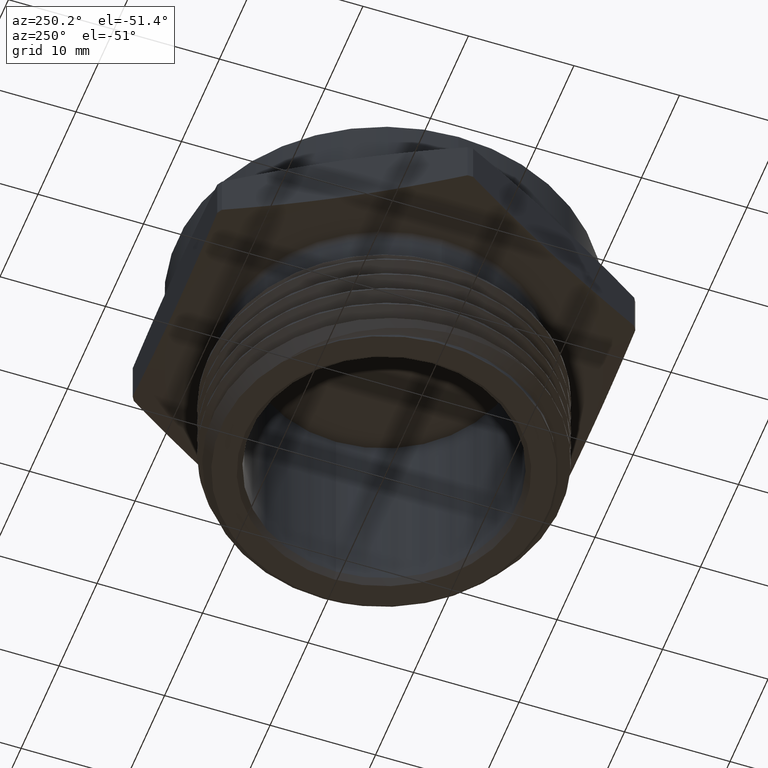
[diagram: clean part render]
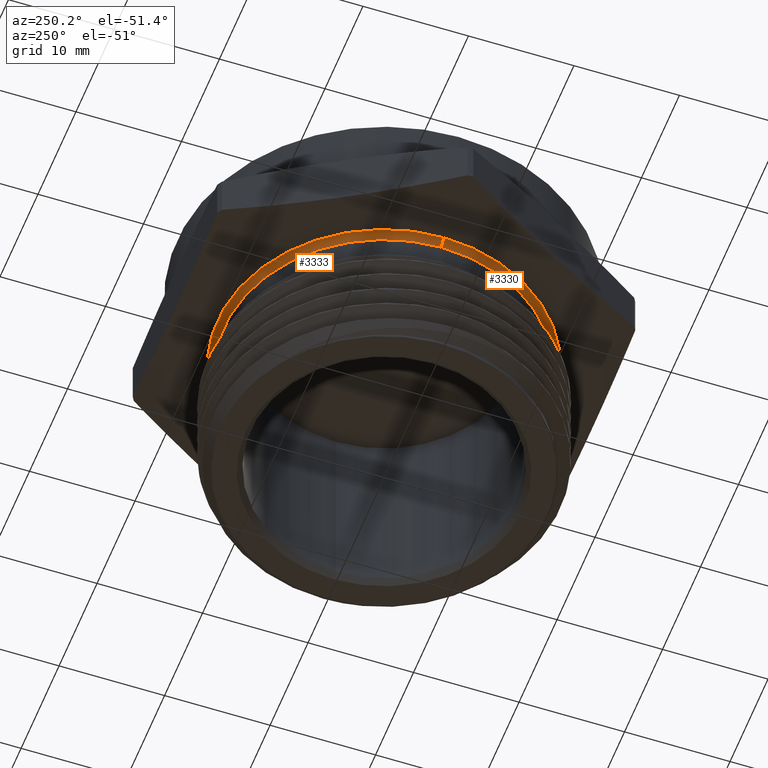
[diagram: same view with one multi-face feature highlighted, each face labeled with its STEP entity id]
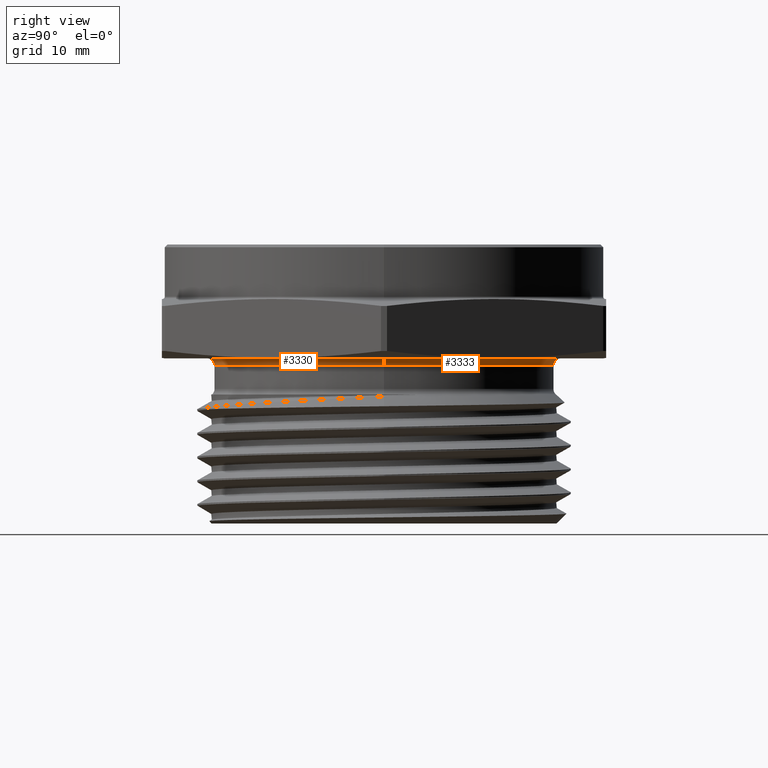
[diagram: same view with one multi-face feature highlighted, each face labeled with its STEP entity id]
A machine part, auxiliary view. The highlighted faces form ONE feature: a constant-radius fillet chain: 2 tangent blend faces with common blend radius 0.635 mm. The faces share edges in the B-rep.
A second angle (right view) of the same feature is appended — it is thin or edge-on in the first view.
Their STEP definitions:
[1] entity #3330 (Torus):
#872 = CARTESIAN_POINT ( 'NONE',  ( -0.6224999999999999400, 7.623426324692272200E-017, -0.02500000000000002200 ) ) ;
#873 = DIRECTION ( 'NONE',  ( 1.224646799147353200E-016, 1.000000000000000000, 0.0000000000000000000 ) ) ;
#874 = DIRECTION ( 'NONE',  ( -1.000000000000000000, 1.224646799147351700E-016, 0.0000000000000000000 ) ) ;
#883 = CARTESIAN_POINT ( 'NONE',  ( 0.6224999999999999400, 0.0000000000000000000, -0.02500000000000002200 ) ) ;
#884 = DIRECTION ( 'NONE',  ( 0.0000000000000000000, -1.000000000000000000, 0.0000000000000000000 ) ) ;
#885 = DIRECTION ( 'NONE',  ( 0.0000000000000000000, 0.0000000000000000000, -1.000000000000000000 ) ) ;
#886 = CARTESIAN_POINT ( 'NONE',  ( 0.0000000000000000000, 0.0000000000000000000, -0.02500000000000002900 ) ) ;
#887 = DIRECTION ( 'NONE',  ( -0.0000000000000000000, -0.0000000000000000000, 1.000000000000000000 ) ) ;
#888 = DIRECTION ( 'NONE',  ( 1.000000000000000000, 0.0000000000000000000, 0.0000000000000000000 ) ) ;
#931 = EDGE_CURVE ( 'NONE', #1632, #1582, #1210, .T. ) ;
#1033 = ORIENTED_EDGE ( 'NONE', *, *, #931, .F. ) ;
#1034 = ORIENTED_EDGE ( 'NONE', *, *, #1436, .T. ) ;
#1035 = ORIENTED_EDGE ( 'NONE', *, *, #1441, .T. ) ;
#1036 = ORIENTED_EDGE ( 'NONE', *, *, #1439, .F. ) ;
#1210 = CIRCLE ( 'NONE', #1313, 0.6224999999999999400 ) ;
#1313 = AXIS2_PLACEMENT_3D ( 'NONE', #1690, #1691, #1692 ) ;
#1340 = AXIS2_PLACEMENT_3D ( 'NONE', #872, #873, #874 ) ;
#1343 = AXIS2_PLACEMENT_3D ( 'NONE', #883, #884, #885 ) ;
#1344 = AXIS2_PLACEMENT_3D ( 'NONE', #886, #887, #888 ) ;
#1383 = AXIS2_PLACEMENT_3D ( 'NONE', #2332, #2331, #2334 ) ;
#1436 = EDGE_CURVE ( 'NONE', #1632, #1625, #2464, .T. ) ;
#1439 = EDGE_CURVE ( 'NONE', #1582, #1594, #2466, .T. ) ;
#1441 = EDGE_CURVE ( 'NONE', #1625, #1594, #2469, .T. ) ;
#1454 = EDGE_LOOP ( 'NONE', ( #1033, #1034, #1035, #1036 ) ) ;
#1582 = VERTEX_POINT ( 'NONE', #2203 ) ;
#1594 = VERTEX_POINT ( 'NONE', #2213 ) ;
#1625 = VERTEX_POINT ( 'NONE', #2229 ) ;
#1632 = VERTEX_POINT ( 'NONE', #2248 ) ;
#1690 = CARTESIAN_POINT ( 'NONE',  ( 0.0000000000000000000, 0.0000000000000000000, -2.134256245050205600E-017 ) ) ;
#1691 = DIRECTION ( 'NONE',  ( -0.0000000000000000000, -0.0000000000000000000, 1.000000000000000000 ) ) ;
#1692 = DIRECTION ( 'NONE',  ( 1.000000000000000000, 0.0000000000000000000, 0.0000000000000000000 ) ) ;
#2203 = CARTESIAN_POINT ( 'NONE',  ( 0.6224999999999999400, 0.0000000000000000000, -3.628235616585349700E-017 ) ) ;
#2213 = CARTESIAN_POINT ( 'NONE',  ( 0.5975000000000000300, 0.0000000000000000000, -0.02500000000000002900 ) ) ;
#2229 = CARTESIAN_POINT ( 'NONE',  ( -0.5975000000000000300, 7.317264624905434600E-017, -0.02500000000000002900 ) ) ;
#2248 = CARTESIAN_POINT ( 'NONE',  ( -0.6224999999999999400, 7.623426324692271000E-017, -3.628235616585349700E-017 ) ) ;
#2331 = DIRECTION ( 'NONE',  ( -0.0000000000000000000, -0.0000000000000000000, 1.000000000000000000 ) ) ;
#2332 = CARTESIAN_POINT ( 'NONE',  ( 0.0000000000000000000, 0.0000000000000000000, -0.02500000000000002200 ) ) ;
#2334 = DIRECTION ( 'NONE',  ( 1.000000000000000000, 0.0000000000000000000, 0.0000000000000000000 ) ) ;
#2464 = CIRCLE ( 'NONE', #1340, 0.02500000000000000500 ) ;
#2466 = CIRCLE ( 'NONE', #1343, 0.02499999999999997400 ) ;
#2469 = CIRCLE ( 'NONE', #1344, 0.5975000000000000300 ) ;
#2562 = TOROIDAL_SURFACE ( 'NONE', #1383, 0.6224999999999999400, 0.02499999999999997400 ) ;
#2563 = FACE_OUTER_BOUND ( 'NONE', #1454, .T. ) ;
#3330 = ADVANCED_FACE ( 'NONE', ( #2563 ), #2562, .F. ) ;
[2] entity #3333 (Torus):
#753 = CARTESIAN_POINT ( 'NONE',  ( 0.0000000000000000000, 0.0000000000000000000, -2.134256245050205600E-017 ) ) ;
#754 = DIRECTION ( 'NONE',  ( -0.0000000000000000000, -0.0000000000000000000, 1.000000000000000000 ) ) ;
#755 = DIRECTION ( 'NONE',  ( 1.000000000000000000, 0.0000000000000000000, 0.0000000000000000000 ) ) ;
#872 = CARTESIAN_POINT ( 'NONE',  ( -0.6224999999999999400, 7.623426324692272200E-017, -0.02500000000000002200 ) ) ;
#873 = DIRECTION ( 'NONE',  ( 1.224646799147353200E-016, 1.000000000000000000, 0.0000000000000000000 ) ) ;
#874 = DIRECTION ( 'NONE',  ( -1.000000000000000000, 1.224646799147351700E-016, 0.0000000000000000000 ) ) ;
#879 = CARTESIAN_POINT ( 'NONE',  ( 0.0000000000000000000, 0.0000000000000000000, -0.02500000000000002900 ) ) ;
#880 = DIRECTION ( 'NONE',  ( -0.0000000000000000000, -0.0000000000000000000, 1.000000000000000000 ) ) ;
#881 = DIRECTION ( 'NONE',  ( 1.000000000000000000, 0.0000000000000000000, 0.0000000000000000000 ) ) ;
#883 = CARTESIAN_POINT ( 'NONE',  ( 0.6224999999999999400, 0.0000000000000000000, -0.02500000000000002200 ) ) ;
#884 = DIRECTION ( 'NONE',  ( 0.0000000000000000000, -1.000000000000000000, 0.0000000000000000000 ) ) ;
#885 = DIRECTION ( 'NONE',  ( 0.0000000000000000000, 0.0000000000000000000, -1.000000000000000000 ) ) ;
#947 = EDGE_LOOP ( 'NONE', ( #1131, #1132, #1133, #1134 ) ) ;
#1131 = ORIENTED_EDGE ( 'NONE', *, *, #1436, .F. ) ;
#1132 = ORIENTED_EDGE ( 'NONE', *, *, #1295, .F. ) ;
#1133 = ORIENTED_EDGE ( 'NONE', *, *, #1439, .T. ) ;
#1134 = ORIENTED_EDGE ( 'NONE', *, *, #1438, .T. ) ;
#1295 = EDGE_CURVE ( 'NONE', #1582, #1632, #2453, .T. ) ;
#1332 = AXIS2_PLACEMENT_3D ( 'NONE', #753, #754, #755 ) ;
#1340 = AXIS2_PLACEMENT_3D ( 'NONE', #872, #873, #874 ) ;
#1342 = AXIS2_PLACEMENT_3D ( 'NONE', #879, #880, #881 ) ;
#1343 = AXIS2_PLACEMENT_3D ( 'NONE', #883, #884, #885 ) ;
#1387 = AXIS2_PLACEMENT_3D ( 'NONE', #2342, #2340, #2344 ) ;
#1436 = EDGE_CURVE ( 'NONE', #1632, #1625, #2464, .T. ) ;
#1438 = EDGE_CURVE ( 'NONE', #1594, #1625, #2465, .T. ) ;
#1439 = EDGE_CURVE ( 'NONE', #1582, #1594, #2466, .T. ) ;
#1582 = VERTEX_POINT ( 'NONE', #2203 ) ;
#1594 = VERTEX_POINT ( 'NONE', #2213 ) ;
#1625 = VERTEX_POINT ( 'NONE', #2229 ) ;
#1632 = VERTEX_POINT ( 'NONE', #2248 ) ;
#2203 = CARTESIAN_POINT ( 'NONE',  ( 0.6224999999999999400, 0.0000000000000000000, -3.628235616585349700E-017 ) ) ;
#2213 = CARTESIAN_POINT ( 'NONE',  ( 0.5975000000000000300, 0.0000000000000000000, -0.02500000000000002900 ) ) ;
#2229 = CARTESIAN_POINT ( 'NONE',  ( -0.5975000000000000300, 7.317264624905434600E-017, -0.02500000000000002900 ) ) ;
#2248 = CARTESIAN_POINT ( 'NONE',  ( -0.6224999999999999400, 7.623426324692271000E-017, -3.628235616585349700E-017 ) ) ;
#2340 = DIRECTION ( 'NONE',  ( -0.0000000000000000000, -0.0000000000000000000, 1.000000000000000000 ) ) ;
#2342 = CARTESIAN_POINT ( 'NONE',  ( 0.0000000000000000000, 0.0000000000000000000, -0.02500000000000002200 ) ) ;
#2344 = DIRECTION ( 'NONE',  ( 1.000000000000000000, 0.0000000000000000000, 0.0000000000000000000 ) ) ;
#2453 = CIRCLE ( 'NONE', #1332, 0.6224999999999999400 ) ;
#2464 = CIRCLE ( 'NONE', #1340, 0.02500000000000000500 ) ;
#2465 = CIRCLE ( 'NONE', #1342, 0.5975000000000000300 ) ;
#2466 = CIRCLE ( 'NONE', #1343, 0.02499999999999997400 ) ;
#2566 = FACE_OUTER_BOUND ( 'NONE', #947, .T. ) ;
#2570 = TOROIDAL_SURFACE ( 'NONE', #1387, 0.6224999999999999400, 0.02499999999999997400 ) ;
#3333 = ADVANCED_FACE ( 'NONE', ( #2566 ), #2570, .F. ) ;